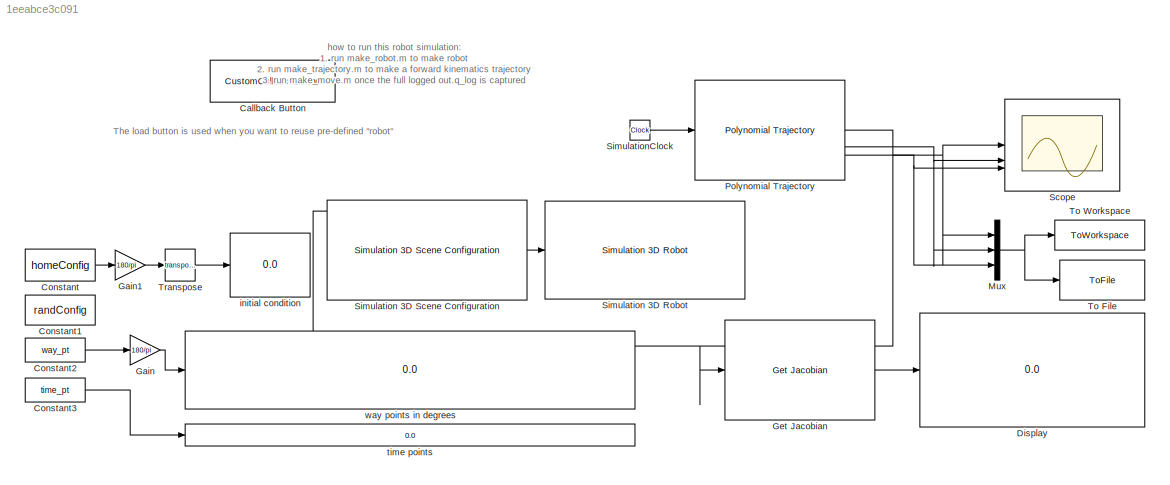
MODEL slx_1eeabce3c091
KIND model
CONFIG SolverName = VariableStepAuto
BLOCK [CustomCallbackButton] Callback Button
  Configuration = {"components":[{"name":"BackgroundImageComponent","settings":{"image":{"size":[0,0],"src":"default","srcOrientation":"Right"},"position":[0,0,1,1]}},{"name":"ButtonStateComponent","settings":{"buttonType":"momentary","clickFcn":"load(\"my_rrr_robot.mat\",'robot')\nrobot.DataFormat = \"column\";\n\nhomeConfig = homeConfiguration(robot);\nrandConfig = randomConfiguration(robot);\n\nload(\"my_rrr_way...<+2703ch>
  CustomBackgroundColor = {"color":[0.9568627451,0.9568627451,0.9568627451],"show":true}
BLOCK [Constant] Constant
  Value = homeConfig
BLOCK [Constant] Constant1
  Value = randConfig
BLOCK [Constant] Constant2
  Value = way_pt
BLOCK [Constant] Constant3
  Value = time_pt
BLOCK [Display] Display
  Decimation = 1
BLOCK [Gain] Gain
  Gain = 180/pi
BLOCK [Gain] Gain1
  Gain = 180/pi
BLOCK [Reference] Get Jacobian  REF=robotmaniplib/Get Jacobian
  SourceBlock = robotmaniplib/Get Jacobian
  SourceType = Get Jacobian
BLOCK [Mux] Mux
  DisplayOption = bar
  Inputs = 3
BLOCK [Reference] Polynomial Trajectory  REF=robotcorelib/Polynomial Trajectory
  LibrarySourceBlock = robotutilslib/Polynomial Trajectory
  SourceBlock = robotcorelib/Polynomial Trajectory
  SourceType = robotics.slcore.internal.block.PolyTrajSys
BLOCK [Scope] Scope
  ActiveDisplayYMaximum = 0.98174770424681035
  ActiveDisplayYMinimum = -0.98174770424681035
  ContainerLayout = {"WindowBounds":[2159,-107,1187,722],"ToolstripCollapsed":true}
  Floating = off
  GraphicalSettings = {"Style":{"BackgroundColor":[0.12941176470588237,0.12941176470588237,0.12941176470588237],"AxesColor":[0.07058823529411765,0.07058823529411765,0.07058823529411765],"LabelsColor":[0.8509803921568627,0.8509803921568627,0.8509803921568627],"PreserveColors":false,"Visible":[true,true,true,true,true,true,true,true,true],"LineStyle":["-","-","-","-","-","-","-","-","-"],"LineWidth":[1.5,1.5,1.5,1.5,1.5,...<+3872ch>
  LayoutDimensionsString = [1,3]
  MultipleDisplayCache = [{"MaxYLimMag":0.98174770424681035,"MaxYLimReal":0.98174770424681035,"MinYLimMag":0,"MinYLimReal":-0.98174770424681035,"PlotAsMagnitudePhase":false,"ShowGrid":true,"ShowLegend":false,"Title":"%<SignalLabel>","YLabel":""},{"MaxYLimMag":0.71176708557893742,"MaxYLimReal":0.51541754472957546,"MinYLimMag":0,"MinYLimReal":-0.71176708557893742,"PlotAsMagnitudePhase":false,"ShowGrid":true,"ShowLegend":fal...<+258ch>
  NumInputPorts = 3
  ScopeFrameLocation = container
  Visible = on
  WasSavedAsWebScope = on
  WindowPosition = [2171.000000,197.000000,1165.000000,666.000000,]
BLOCK [Reference] Simulation 3D Robot  REF=robotsim3dlib/Simulation 3D Robot
  Commented = on
  SourceBlock = robotsim3dlib/Simulation 3D Robot
  SourceType = Simulation 3D Robot
BLOCK [Reference] Simulation 3D Scene Configuration  REF=sim3dlib/Simulation 3D Scene Configuration
  Commented = on
  LibrarySourceBlock = robotsim3dlib/Simulation 3D Scene Configuration
  Priority = 0
  SourceBlock = sim3dlib/Simulation 3D Scene Configuration
  SourceType = Simulation 3D Scene Configuration
BLOCK [Clock] SimulationClock
BLOCK [ToFile] To File
  Filename = out_qlog.mat
  SaveFormat = Timeseries
BLOCK [ToWorkspace] To Workspace
  FixptAsFi = on
  MaxDataPoints = inf
  SampleTime = -1
  SaveFormat = Timeseries
  VariableName = q_log
BLOCK [Math] Transpose
  Operator = transpose
BLOCK [Display] initial condition
  Decimation = 1
BLOCK [Display] time points
  Decimation = 1
BLOCK [Display] way points in degrees
  Decimation = 1
ANNOTATION (root): how to run this robot simulation: 1. run make_robot.m to make robot 2. run make_trajectory.m to make a forward kinematics trajectory 3. run make_move.m once the full logged out.q_log is captured
ANNOTATION (root): The load button is used when you want to reuse pre-defined "robot"
LINE Constant2:1 -> Gain:1
LINE Constant3:1 -> time points:1
LINE Constant:1 -> Gain1:1
LINE Gain1:1 -> Transpose:1
LINE Gain:1 -> way points in degrees:1
LINE Get Jacobian:1 -> Display:1
NET Mux:1 -> To File:1, To Workspace:1
NET Polynomial Trajectory:1 -> Get Jacobian:1, Mux:1, Scope:1, Simulation 3D Robot:1
NET Polynomial Trajectory:2 -> Mux:2, Scope:2
NET Polynomial Trajectory:3 -> Mux:3, Scope:3
LINE SimulationClock:1 -> Polynomial Trajectory:1
LINE Transpose:1 -> initial condition:1
note: NET lines group one-source signal fan-out (src -> all destinations, sorted); 1:1 wires keep LINE
